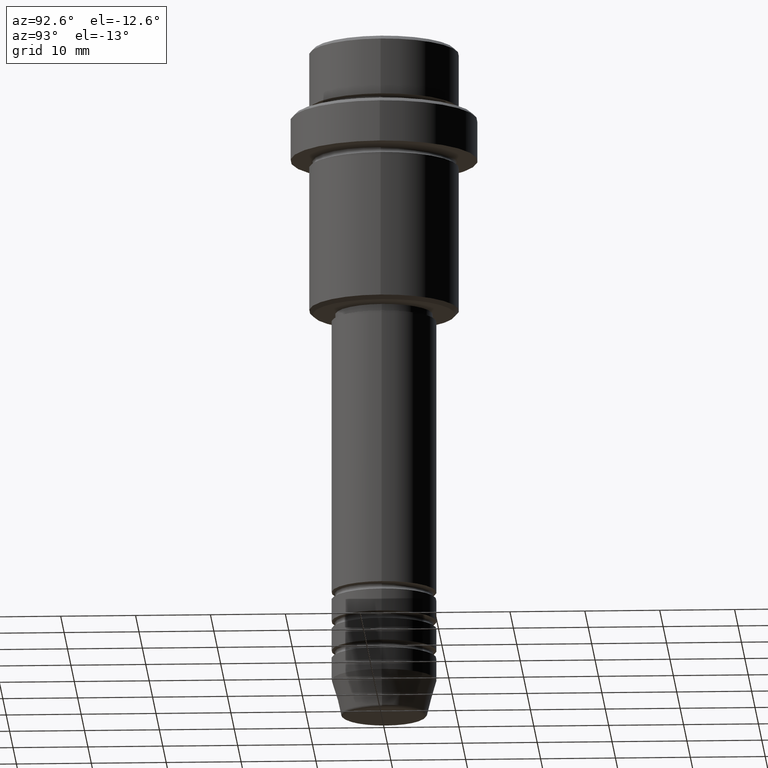
[diagram: clean part render]
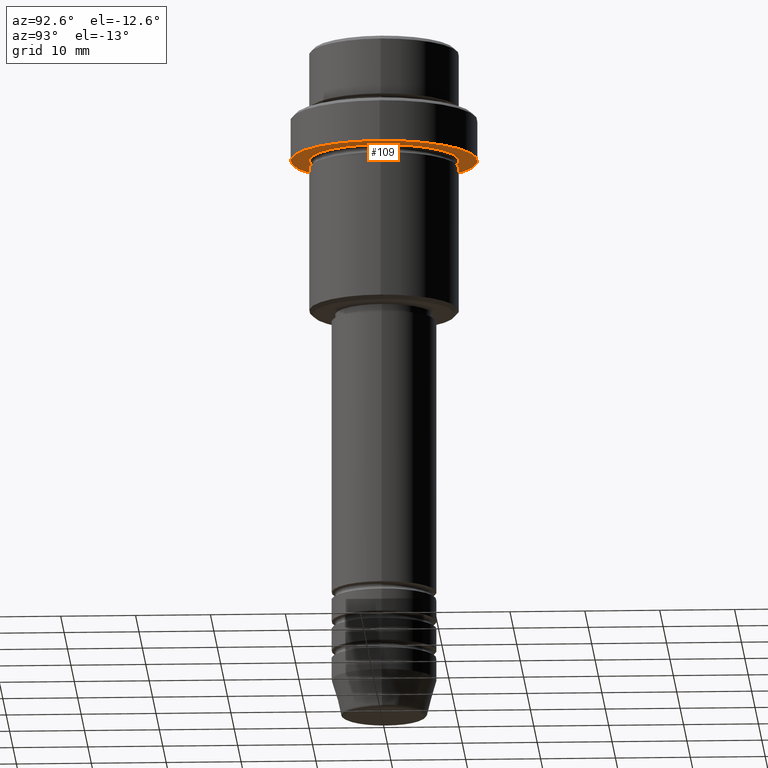
[diagram: same view with one face highlighted and labeled with its STEP entity id]
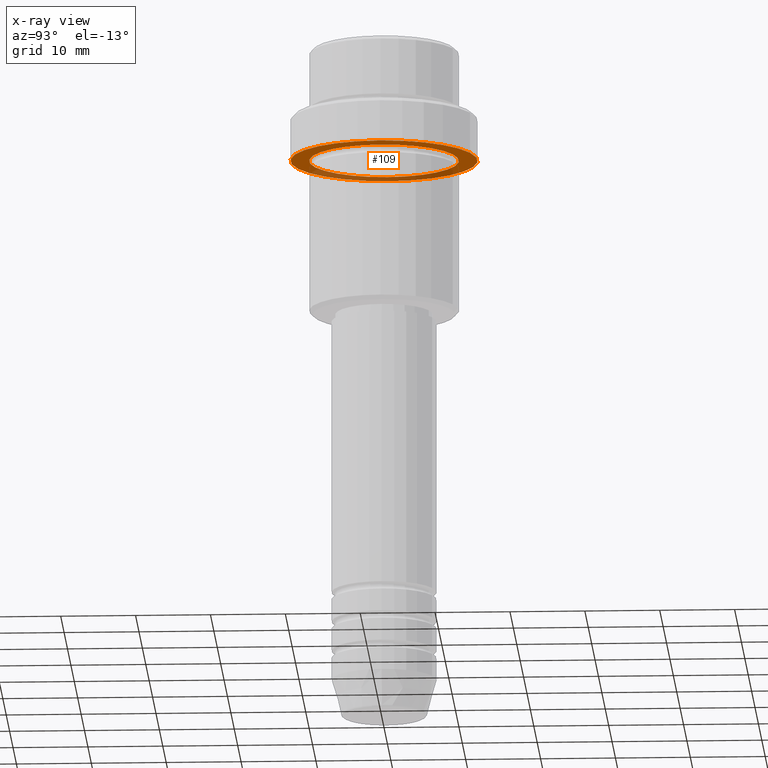
[diagram: x-ray of the same camera — body ghosted, the highlighted face saturated]
A machine part, auxiliary view. The second image highlights one B-rep face of the part: STEP entity #109.
The next image is the same camera in x-ray: the body ghosted, the highlighted face saturated — about 31% of this face is hidden behind the body in this view.
In plain terms, the highlighted planar face has unit normal (0, 0, -1).
Its self-contained STEP definition (entity closure, byte-faithful):
#59 = VERTEX_POINT ( 'NONE', #969 ) ;
#84 = CARTESIAN_POINT ( 'NONE',  ( 0.000000000000000000, 0.000000000000000000, -15.00000000000000000 ) ) ;
#107 = FACE_BOUND ( 'NONE', #449, .T. ) ;
#109 = ADVANCED_FACE ( 'NONE', ( #107, #541 ), #782, .T. ) ;
#144 = CARTESIAN_POINT ( 'NONE',  ( -9.999999999999994671, 0.000000000000000000, -15.00000000000000000 ) ) ;
#187 = ORIENTED_EDGE ( 'NONE', *, *, #997, .F. ) ;
#309 = DIRECTION ( 'NONE',  ( -1.000000000000000000, 0.000000000000000000, 0.000000000000000000 ) ) ;
#357 = CARTESIAN_POINT ( 'NONE',  ( 12.50000000000000000, 0.000000000000000000, -15.00000000000000178 ) ) ;
#412 = CARTESIAN_POINT ( 'NONE',  ( 9.999999999999994671, 1.224646799147352665E-15, -15.00000000000000000 ) ) ;
#432 = CIRCLE ( 'NONE', #1226, 9.999999999999994671 ) ;
#449 = EDGE_LOOP ( 'NONE', ( #1011, #1199 ) ) ;
#450 = DIRECTION ( 'NONE',  ( -0.000000000000000000, -0.000000000000000000, 1.000000000000000000 ) ) ;
#458 = DIRECTION ( 'NONE',  ( 1.000000000000000000, 0.000000000000000000, 0.000000000000000000 ) ) ;
#507 = VERTEX_POINT ( 'NONE', #357 ) ;
#530 = DIRECTION ( 'NONE',  ( -0.000000000000000000, -0.000000000000000000, 1.000000000000000000 ) ) ;
#541 = FACE_OUTER_BOUND ( 'NONE', #542, .T. ) ;
#542 = EDGE_LOOP ( 'NONE', ( #1233, #187 ) ) ;
#570 = DIRECTION ( 'NONE',  ( -0.000000000000000000, -0.000000000000000000, 1.000000000000000000 ) ) ;
#580 = CARTESIAN_POINT ( 'NONE',  ( 0.000000000000000000, 0.000000000000000000, -15.00000000000000178 ) ) ;
#597 = CIRCLE ( 'NONE', #750, 9.999999999999994671 ) ;
#608 = VERTEX_POINT ( 'NONE', #144 ) ;
#711 = CIRCLE ( 'NONE', #1294, 12.50000000000000000 ) ;
#750 = AXIS2_PLACEMENT_3D ( 'NONE', #776, #570, #1003 ) ;
#757 = CARTESIAN_POINT ( 'NONE',  ( 0.000000000000000000, 12.50000000000000000, -15.00000000000000000 ) ) ;
#767 = AXIS2_PLACEMENT_3D ( 'NONE', #757, #1080, #1407 ) ;
#772 = VERTEX_POINT ( 'NONE', #412 ) ;
#776 = CARTESIAN_POINT ( 'NONE',  ( 0.000000000000000000, 0.000000000000000000, -15.00000000000000000 ) ) ;
#782 = PLANE ( 'NONE',  #767 ) ;
#814 = EDGE_CURVE ( 'NONE', #608, #772, #432, .T. ) ;
#924 = EDGE_CURVE ( 'NONE', #772, #608, #597, .T. ) ;
#930 = DIRECTION ( 'NONE',  ( 1.000000000000000000, 0.000000000000000000, 0.000000000000000000 ) ) ;
#969 = CARTESIAN_POINT ( 'NONE',  ( -12.50000000000000000, 1.530808498934191521E-15, -15.00000000000000178 ) ) ;
#994 = CARTESIAN_POINT ( 'NONE',  ( 0.000000000000000000, 0.000000000000000000, -15.00000000000000178 ) ) ;
#997 = EDGE_CURVE ( 'NONE', #59, #507, #1386, .T. ) ;
#1003 = DIRECTION ( 'NONE',  ( -1.000000000000000000, 0.000000000000000000, 0.000000000000000000 ) ) ;
#1011 = ORIENTED_EDGE ( 'NONE', *, *, #814, .T. ) ;
#1036 = DIRECTION ( 'NONE',  ( -0.000000000000000000, -0.000000000000000000, 1.000000000000000000 ) ) ;
#1080 = DIRECTION ( 'NONE',  ( 0.000000000000000000, 0.000000000000000000, -1.000000000000000000 ) ) ;
#1082 = EDGE_CURVE ( 'NONE', #507, #59, #711, .T. ) ;
#1199 = ORIENTED_EDGE ( 'NONE', *, *, #924, .T. ) ;
#1226 = AXIS2_PLACEMENT_3D ( 'NONE', #84, #530, #309 ) ;
#1233 = ORIENTED_EDGE ( 'NONE', *, *, #1082, .F. ) ;
#1294 = AXIS2_PLACEMENT_3D ( 'NONE', #580, #1036, #930 ) ;
#1386 = CIRCLE ( 'NONE', #1406, 12.50000000000000000 ) ;
#1406 = AXIS2_PLACEMENT_3D ( 'NONE', #994, #450, #458 ) ;
#1407 = DIRECTION ( 'NONE',  ( -1.000000000000000000, 0.000000000000000000, -0.000000000000000000 ) ) ;